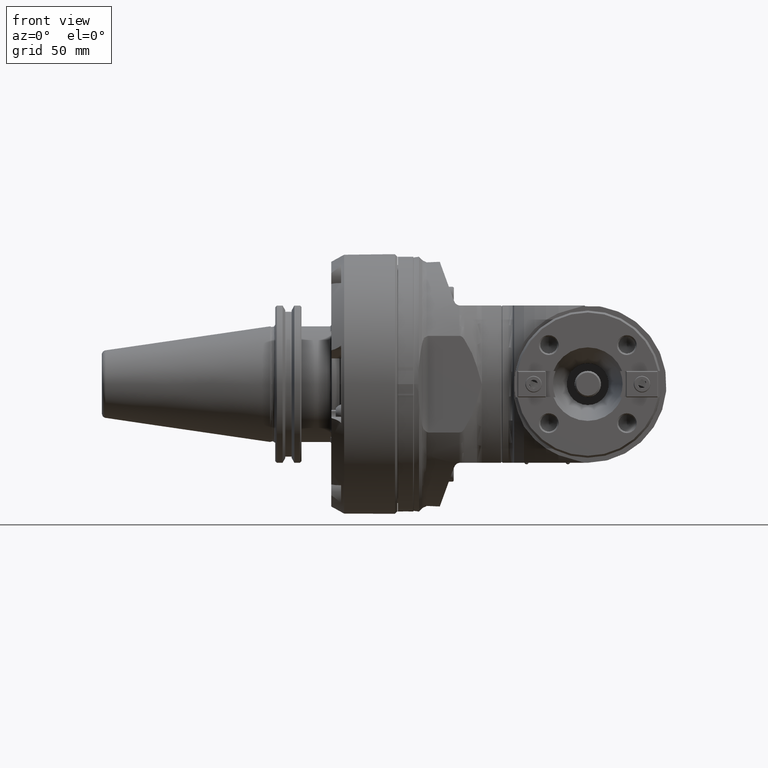
[diagram: clean part render]
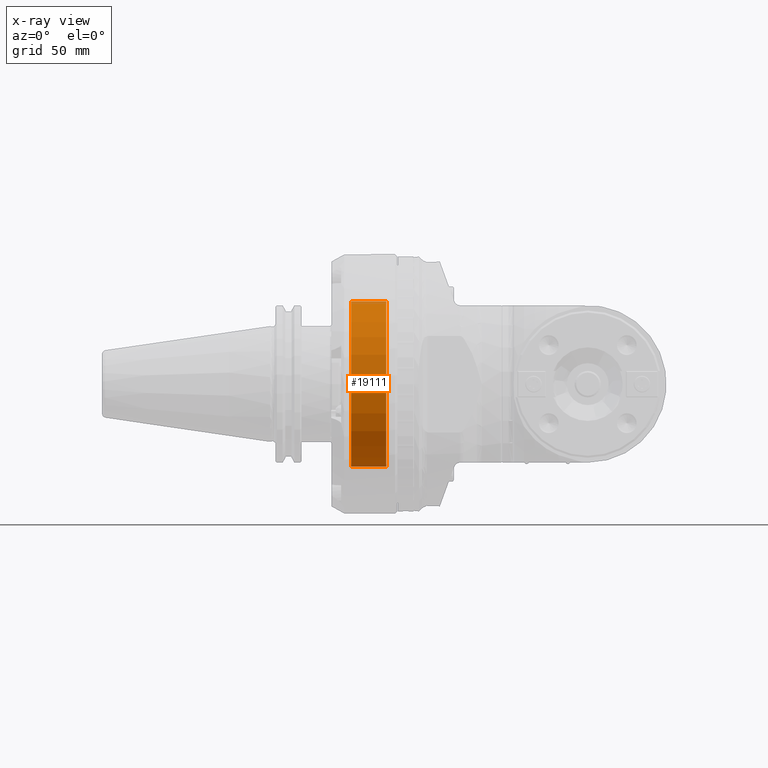
[diagram: x-ray — body ghosted, one internal face saturated and labeled with its STEP entity id]
A machine part, front view, then the same camera in x-ray: the body is ghosted and one INTERNAL B-rep face — a face not visible from any outside direction — is saturated and labeled: STEP entity #19111.
In plain terms, the highlighted cylindrical surface (bore or boss wall) has radius 50 mm, axis along (1, -0, 0).
Its self-contained STEP definition (entity closure, byte-faithful):
#2274=FACE_OUTER_BOUND('',#3457,.T.);
#3457=EDGE_LOOP('',(#16734,#16735,#16736,#16737,#16738,#16739,#16740,#16741,
#16742));
#4766=LINE('',#32602,#6226);
#4815=LINE('',#32984,#6275);
#4913=LINE('',#33428,#6373);
#6226=VECTOR('',#24973,5.5);
#6275=VECTOR('',#25216,5.5);
#6373=VECTOR('',#25584,50.);
#7220=CIRCLE('',#20714,50.);
#7354=CIRCLE('',#20940,50.);
#7355=CIRCLE('',#20941,50.);
#7356=CIRCLE('',#20943,50.);
#7357=CIRCLE('',#20944,50.);
#8917=VERTEX_POINT('',#32586);
#8924=VERTEX_POINT('',#32600);
#8925=VERTEX_POINT('',#32604);
#9002=VERTEX_POINT('',#32983);
#9125=VERTEX_POINT('',#33419);
#9126=VERTEX_POINT('',#33420);
#9127=VERTEX_POINT('',#33425);
#11432=EDGE_CURVE('',#8917,#8924,#4766,.T.);
#11433=EDGE_CURVE('',#8917,#8925,#7220,.T.);
#11555=EDGE_CURVE('',#9002,#8925,#4815,.T.);
#11739=EDGE_CURVE('',#9125,#9126,#7354,.T.);
#11741=EDGE_CURVE('',#9126,#9125,#7355,.T.);
#11742=EDGE_CURVE('',#9002,#9127,#7356,.T.);
#11743=EDGE_CURVE('',#9127,#8924,#7357,.T.);
#11744=EDGE_CURVE('',#9127,#9125,#4913,.T.);
#16734=ORIENTED_EDGE('',*,*,#11742,.F.);
#16735=ORIENTED_EDGE('',*,*,#11555,.T.);
#16736=ORIENTED_EDGE('',*,*,#11433,.F.);
#16737=ORIENTED_EDGE('',*,*,#11432,.T.);
#16738=ORIENTED_EDGE('',*,*,#11743,.F.);
#16739=ORIENTED_EDGE('',*,*,#11744,.T.);
#16740=ORIENTED_EDGE('',*,*,#11741,.F.);
#16741=ORIENTED_EDGE('',*,*,#11739,.F.);
#16742=ORIENTED_EDGE('',*,*,#11744,.F.);
#18241=CYLINDRICAL_SURFACE('',#20942,50.);
#19111=ADVANCED_FACE('',(#2274),#18241,.F.);
#20714=AXIS2_PLACEMENT_3D('',#32605,#24976,#24977);
#20940=AXIS2_PLACEMENT_3D('',#33421,#25573,#25574);
#20941=AXIS2_PLACEMENT_3D('',#33423,#25576,#25577);
#20942=AXIS2_PLACEMENT_3D('',#33424,#25578,#25579);
#20943=AXIS2_PLACEMENT_3D('',#33426,#25580,#25581);
#20944=AXIS2_PLACEMENT_3D('',#33427,#25582,#25583);
#24973=DIRECTION('',(-1.,0.,0.));
#24976=DIRECTION('center_axis',(1.,0.,0.));
#24977=DIRECTION('ref_axis',(0.,0.992773891679269,-0.119999999999996));
#25216=DIRECTION('',(1.,0.,0.));
#25573=DIRECTION('center_axis',(-1.,0.,0.));
#25574=DIRECTION('ref_axis',(0.,0.,1.));
#25576=DIRECTION('center_axis',(-1.,0.,0.));
#25577=DIRECTION('ref_axis',(0.,0.,1.));
#25578=DIRECTION('center_axis',(1.,0.,0.));
#25579=DIRECTION('ref_axis',(0.,0.,1.));
#25580=DIRECTION('center_axis',(1.,0.,0.));
#25581=DIRECTION('ref_axis',(0.,0.992773891679269,0.119999999999996));
#25582=DIRECTION('center_axis',(1.,0.,0.));
#25583=DIRECTION('ref_axis',(0.,0.992773891679269,0.119999999999996));
#25584=DIRECTION('',(1.,0.,0.));
#32586=CARTESIAN_POINT('',(54.5,49.63869458396,-6.));
#32600=CARTESIAN_POINT('',(49.,49.63869458396,-6.));
#32602=CARTESIAN_POINT('',(54.5,49.63869458396,-6.));
#32604=CARTESIAN_POINT('',(54.5,49.63869458396,6.));
#32605=CARTESIAN_POINT('Origin',(54.5,0.,0.));
#32983=CARTESIAN_POINT('',(49.,49.63869458396,6.));
#32984=CARTESIAN_POINT('',(49.,49.63869458396,6.));
#33419=CARTESIAN_POINT('',(70.26794919243,0.,-50.));
#33420=CARTESIAN_POINT('',(70.2679491924314,-6.12323399573647E-15,49.9999999999976));
#33421=CARTESIAN_POINT('Origin',(70.26794919243,0.,0.));
#33423=CARTESIAN_POINT('Origin',(70.26794919243,0.,0.));
#33424=CARTESIAN_POINT('Origin',(60.5,0.,0.));
#33425=CARTESIAN_POINT('',(49.,6.12323399573677E-15,-50.));
#33426=CARTESIAN_POINT('Origin',(49.,0.,0.));
#33427=CARTESIAN_POINT('Origin',(49.,0.,0.));
#33428=CARTESIAN_POINT('',(60.5,6.12323399573677E-15,-50.));